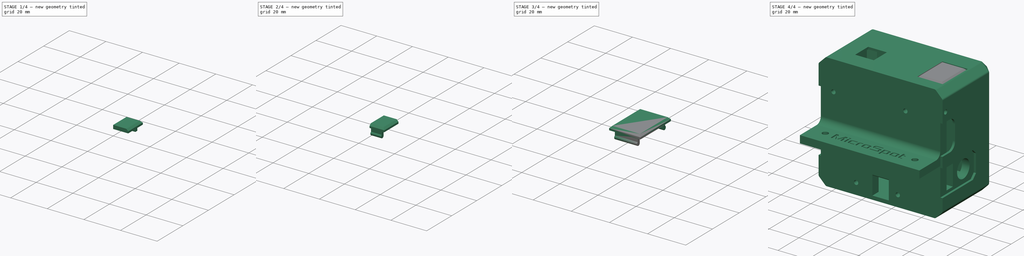
[diagram: build sequence overview — one tinted view per stage of 4, left to right]
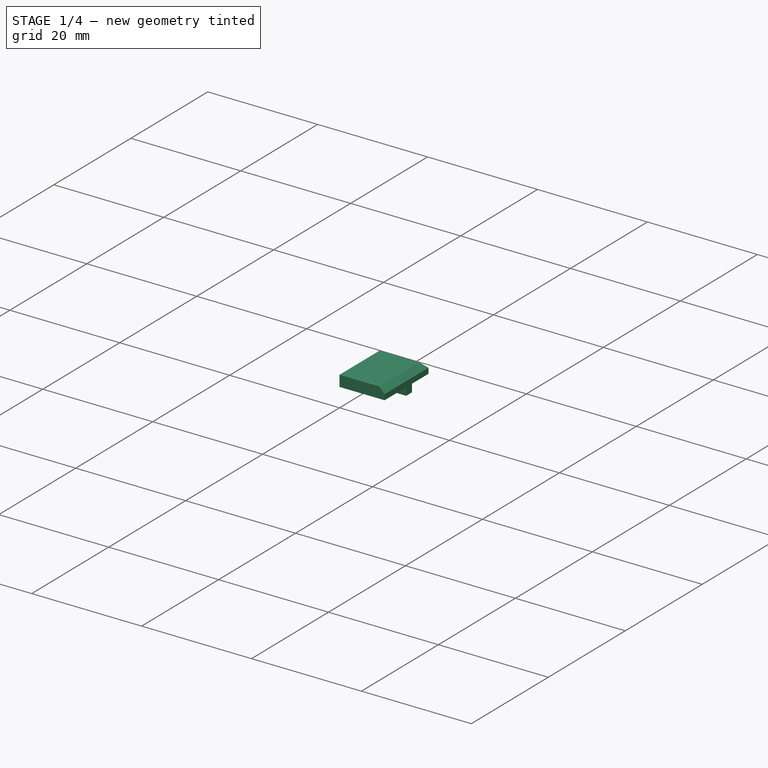
[diagram: stage 1 of 4 — iso view after this stage's code; geometry added in this stage tinted green]
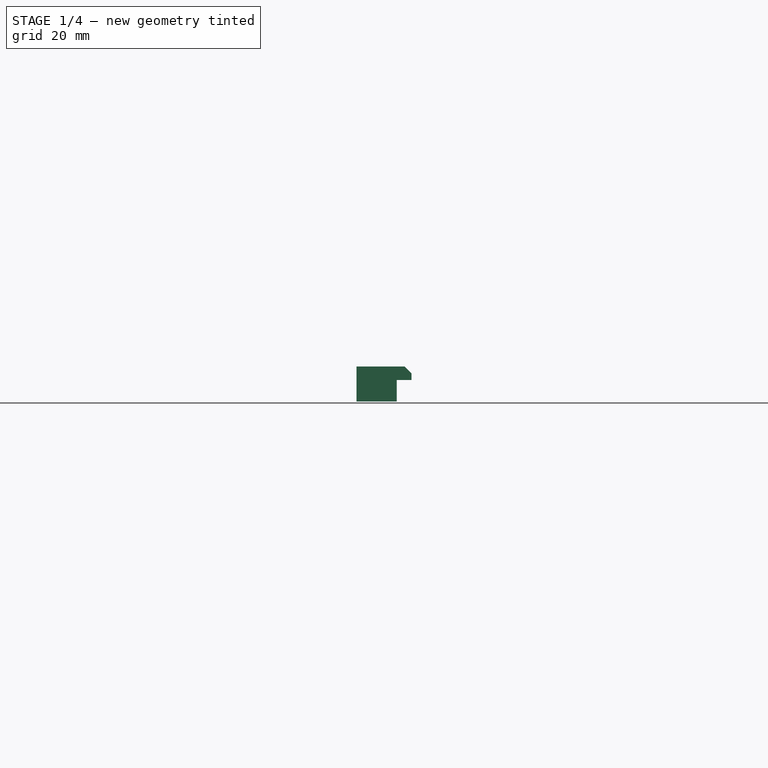
[diagram: stage 1 of 4 — front view after this stage's code; geometry added in this stage tinted green]
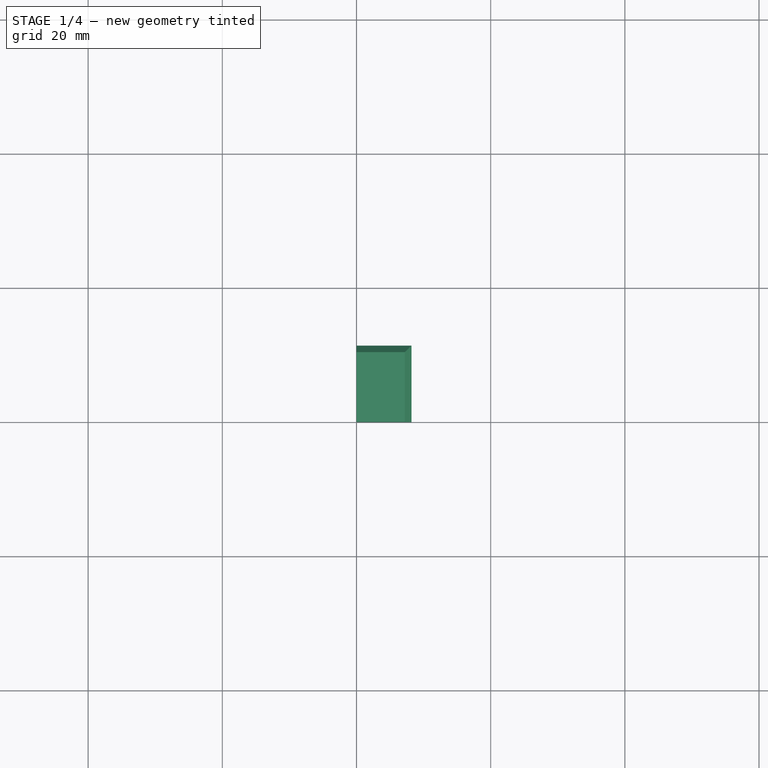
[diagram: stage 1 of 4 — top view after this stage's code; geometry added in this stage tinted green]
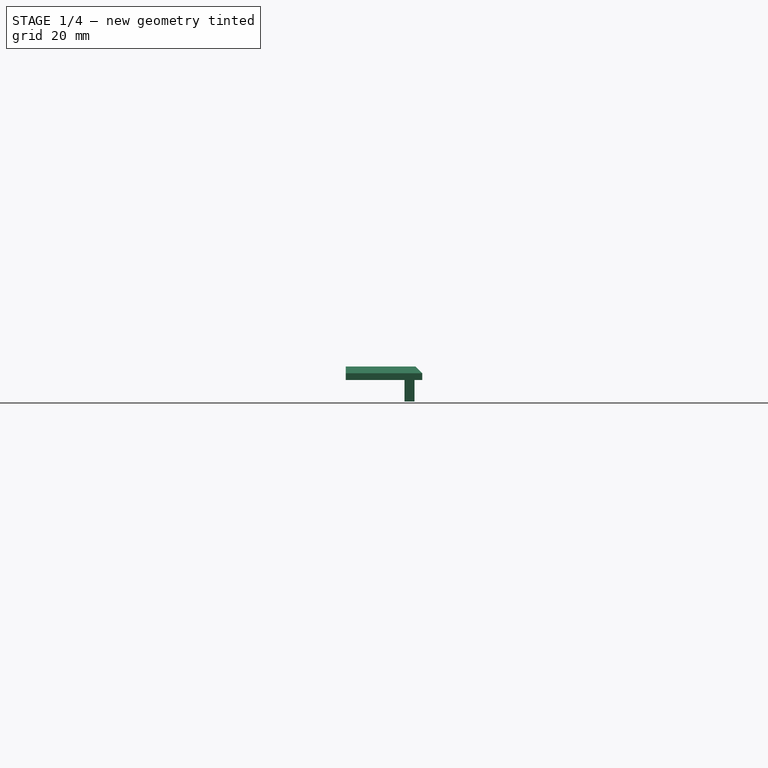
[diagram: stage 1 of 4 — right view after this stage's code; geometry added in this stage tinted green]
FCSTD DOCUMENT  (FreeCAD 0.16RUnknown)
Label: DummySwitch
License: All rights reserved
LicenseURL: http://en.wikipedia.org/wiki/All_rights_reserved
objects: Part::FeaturePython×5, App::DocumentObjectGroup×3, Sketcher::SketchObject×3, PartDesign::Pad×3, Part::Mirroring×2, Part::MultiFuse×2, Spreadsheet::Sheet×1, Part::Chamfer×1
note: 19 computed .brp shape members not serialized (recipe doc carries the construction recipe); baked Part::Feature solids carry a one-line shape summary decoded from their .brp

FEATURE [App::DocumentObjectGroup] Group002  label="Reference"
  Group = -> [ElecMain_01,ElecLid_01]
FEATURE [Sketcher::SketchObject] Sketch  label="Base"
  sketch-geometry (4):
    g0: LineSegment StartX=6 StartY=10.25 StartZ=0 EndX=0 EndY=10.25 EndZ=0
    g1: LineSegment StartX=0 StartY=10.25 StartZ=0 EndX=0 EndY=8.75 EndZ=0
    g2: LineSegment StartX=0 StartY=8.75 StartZ=0 EndX=6 EndY=8.75 EndZ=0
    g3: LineSegment StartX=6 StartY=8.75 StartZ=0 EndX=6 EndY=10.25 EndZ=0
  constraints (12):
    c: Coincident(g0,g1)
    c: Coincident(g2,g3)
    c: Coincident(g3,g0)
    c: Horizontal(g0)
    c: Horizontal(g2)
    c: Vertical(g1)
    c: Vertical(g3)
    c: DistanceX(g0) = 6
    c: DistanceY(g0) = 10.25
    c: Coincident(g2,g1)
    c: PointOnObject(g1,g-2)
    c: DistanceY(g1,g1) = 1.5
FEATURE [PartDesign::Pad] Pad  label="Base001"
  Length = 3.2
  Length2 = 100
  Reversed = true
  Sketch = -> Sketch
  Type = 0
FEATURE [Sketcher::SketchObject] Sketch001  label="Upper"
  Support = -> Pad [Face5]
  sketch-geometry (4):
    g0: LineSegment StartX=0 StartY=0 StartZ=0 EndX=8.2 EndY=0 EndZ=0
    g1: LineSegment StartX=8.2 StartY=0 StartZ=0 EndX=8.2 EndY=11.4 EndZ=0
    g2: LineSegment StartX=8.2 StartY=11.4 StartZ=0 EndX=0 EndY=11.4 EndZ=0
    g3: LineSegment StartX=0 StartY=11.4 StartZ=0 EndX=0 EndY=0 EndZ=0
  constraints (11):
    c: Coincident(g0,g1)
    c: Coincident(g1,g2)
    c: Coincident(g2,g3)
    c: Coincident(g3,g0)
    c: Horizontal(g0)
    c: Horizontal(g2)
    c: Vertical(g1)
    c: Vertical(g3)
    c: Coincident(g0,g-1)
    c: DistanceX(g2,g2) = 8.2
    c: DistanceY(g1,g1) = 11.4
FEATURE [PartDesign::Pad] Pad001  label="Upper001"
  Length = 2
  Length2 = 100
  Sketch = -> Sketch001
  Type = 0
FEATURE [Part::Chamfer] Chamfer
  Base = -> Pad001
  Edges = 2 edges r=1: [Edge22,Edge24]
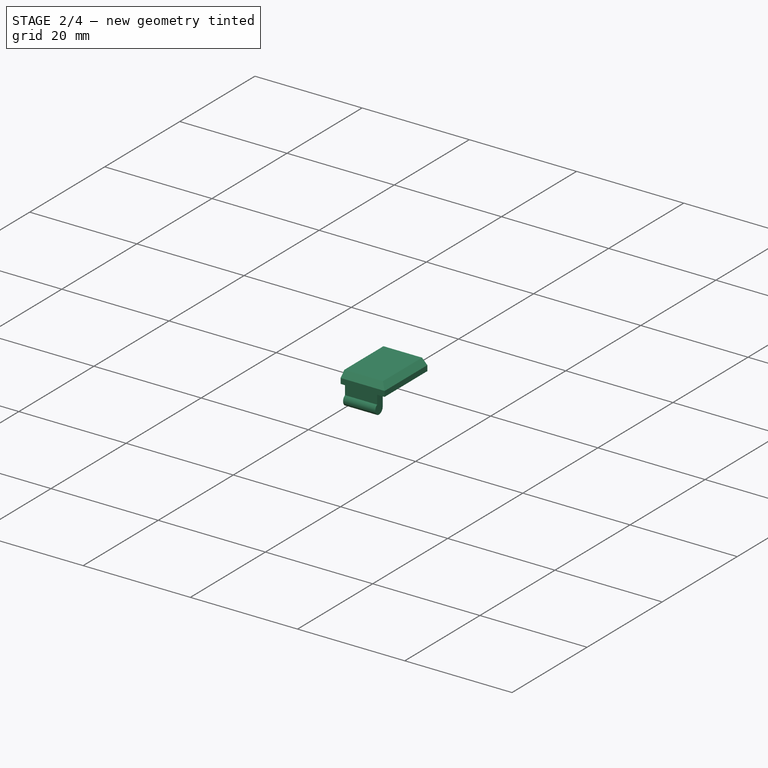
[diagram: stage 2 of 4 — iso view after this stage's code; geometry added in this stage tinted green]
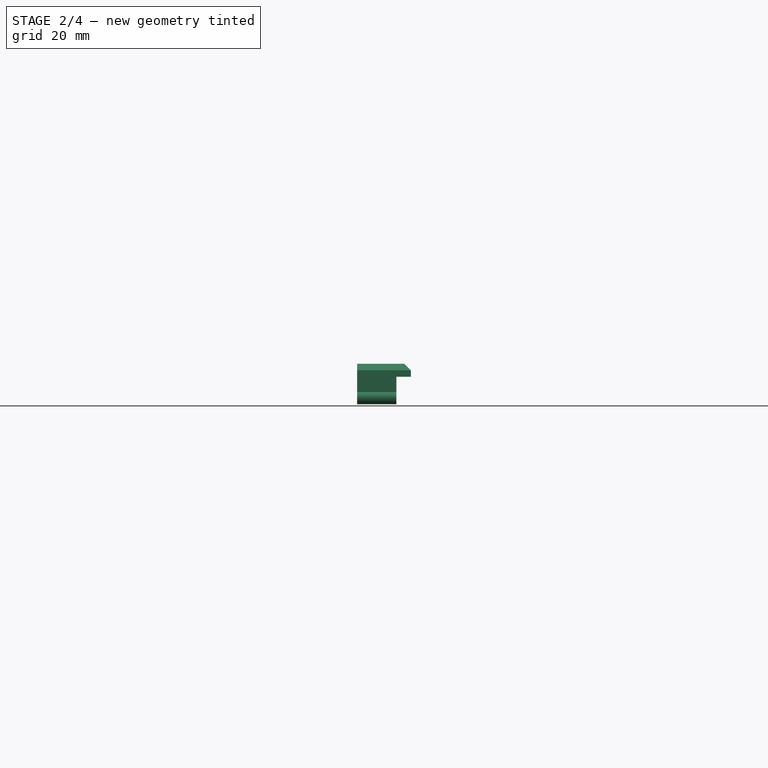
[diagram: stage 2 of 4 — front view after this stage's code; geometry added in this stage tinted green]
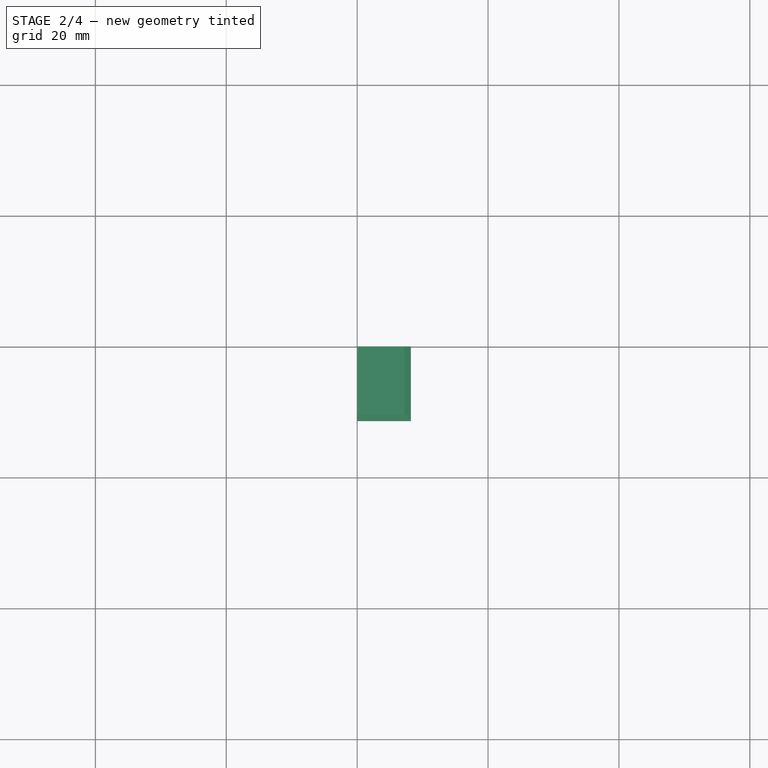
[diagram: stage 2 of 4 — top view after this stage's code; geometry added in this stage tinted green]
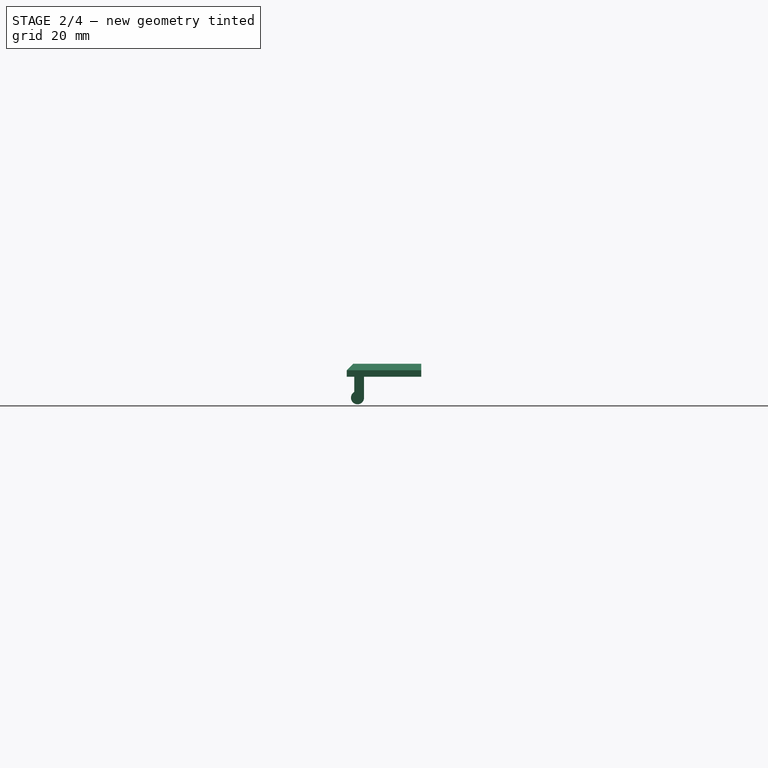
[diagram: stage 2 of 4 — right view after this stage's code; geometry added in this stage tinted green]
FEATURE [Sketcher::SketchObject] Sketch002  label="Fix"
  Placement = pos=(0,0,0) rot=(0.57735,-0.57735,-0.57735;2.0944rad)
  Support = -> Chamfer [Face6]
  sketch-geometry (2):
    g0: Circle CenterX=-9.75 CenterY=-3.2 CenterZ=0 NormalX=0 NormalY=0 NormalZ=1 Radius=1
    g1: GeomPoint [constr] X=-8.75 Y=-3.2 Z=0
  constraints (5):
    c: DistanceY(g0) = -3.2
    c: PointOnObject(g1,g0)
    c: DistanceX(g1) = -8.75
    c: DistanceY(g1) = -3.2
    c: DistanceX(g0) = -9.75
FEATURE [PartDesign::Pad] Pad002  label="Fix001"
  Length = 10
  Length2 = 100
  Sketch = -> Sketch002
  Type = 3
  UpToFace = -> Chamfer [Face11]
FEATURE [Part::FeaturePython] refine  label="refine_Fix001"  # WARN: FeaturePython — macro-defined, semantics opaque (R4)
  Base = -> Pad002
FEATURE [Part::Mirroring] Part__Mirroring  label="refine_Fix001 (Mirror #1)"
  Base = (0,0,0)
  Normal = (0,1,0)
  Source = -> refine
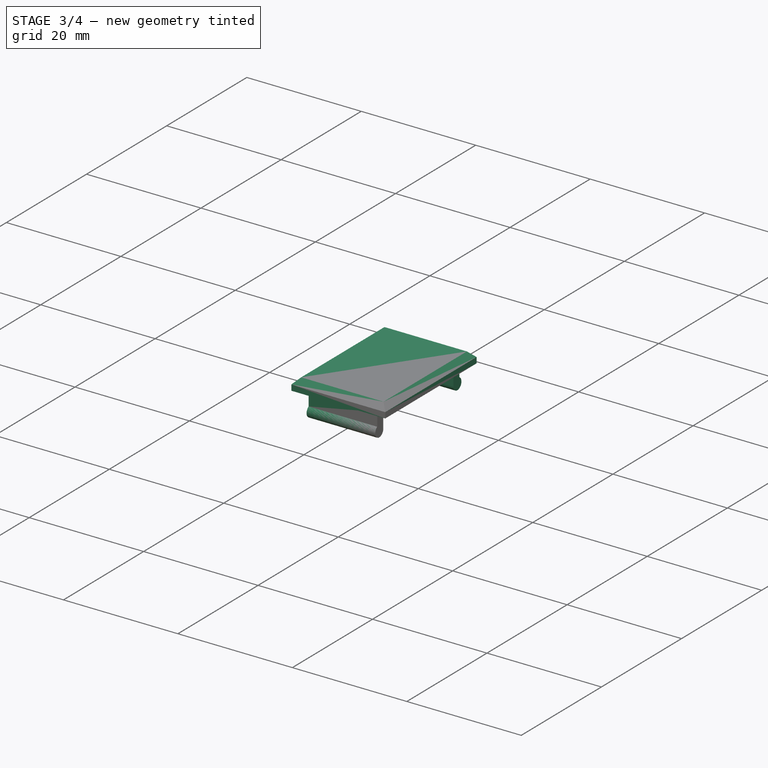
[diagram: stage 3 of 4 — iso view after this stage's code; geometry added in this stage tinted green]
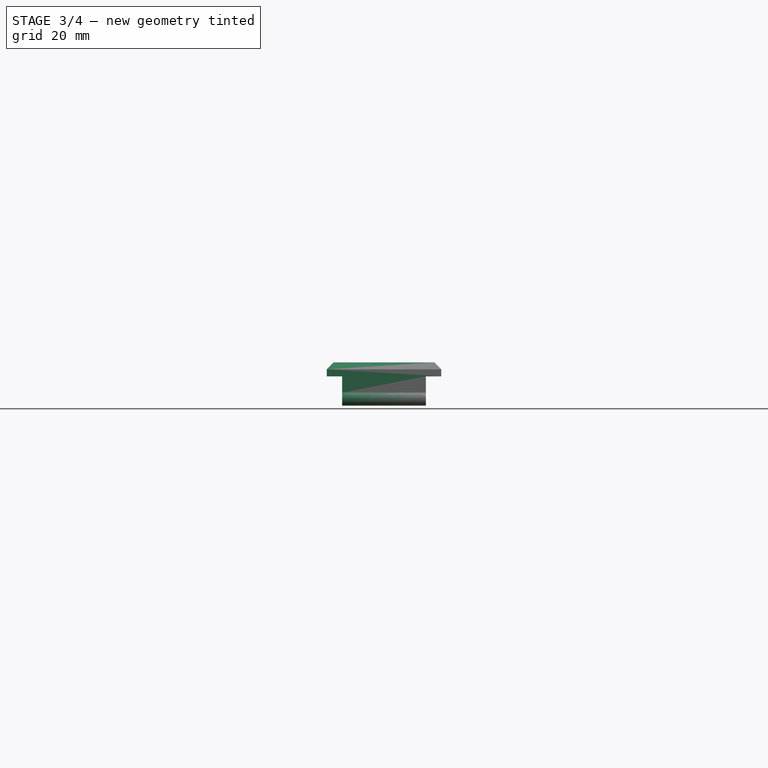
[diagram: stage 3 of 4 — front view after this stage's code; geometry added in this stage tinted green]
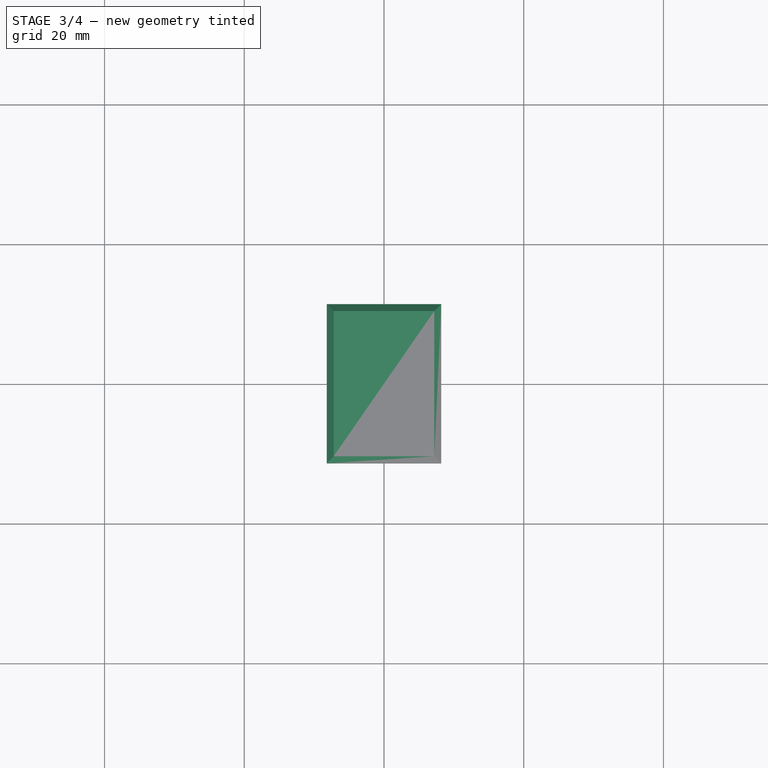
[diagram: stage 3 of 4 — top view after this stage's code; geometry added in this stage tinted green]
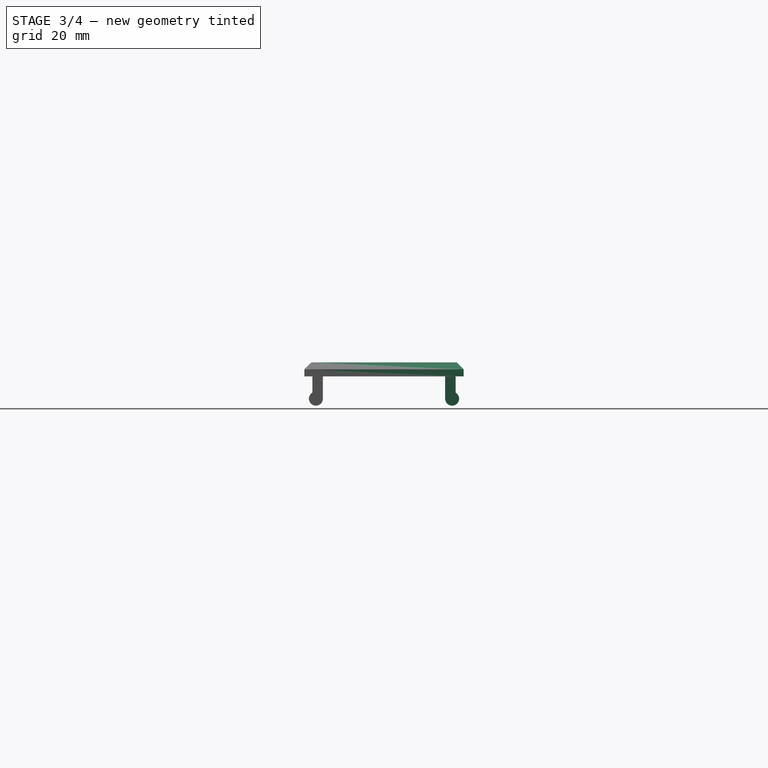
[diagram: stage 3 of 4 — right view after this stage's code; geometry added in this stage tinted green]
FEATURE [Part::MultiFuse] Fusion
  Shapes = -> [refine,Part__Mirroring]
FEATURE [Part::Mirroring] Part__Mirroring001  label="Fusion (Mirror #2)"
  Base = (0,0,0)
  Normal = (1,0,0)
  Source = -> Fusion
FEATURE [Part::MultiFuse] Fusion001  label="Mirroring"
  Shapes = -> [Part__Mirroring001,Fusion]
FEATURE [Part::FeaturePython] refine001  label="refine_Mirroring"  # WARN: FeaturePython — macro-defined, semantics opaque (R4)
  Base = -> Fusion001
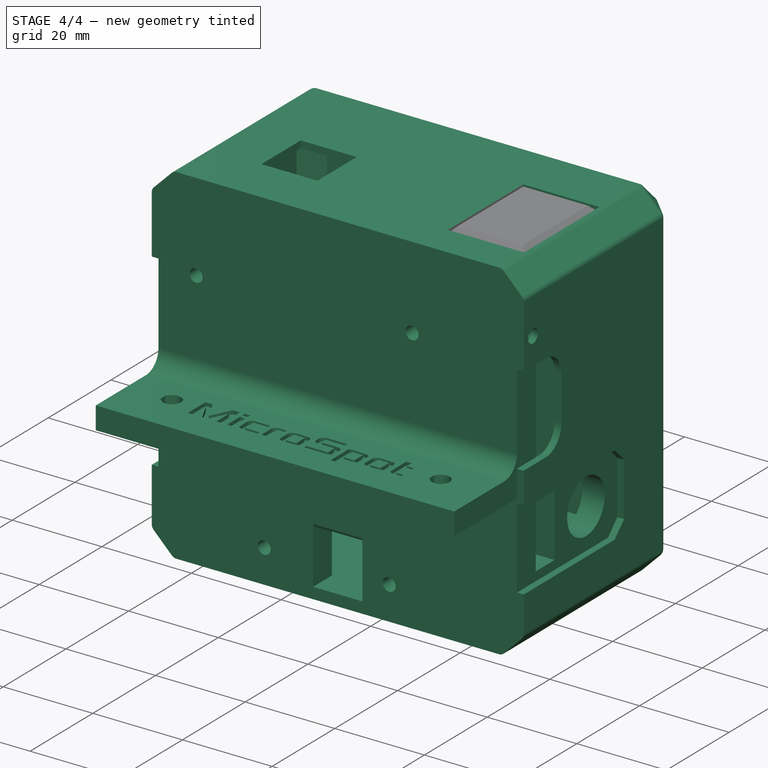
[diagram: stage 4 of 4 — iso view after this stage's code; geometry added in this stage tinted green]
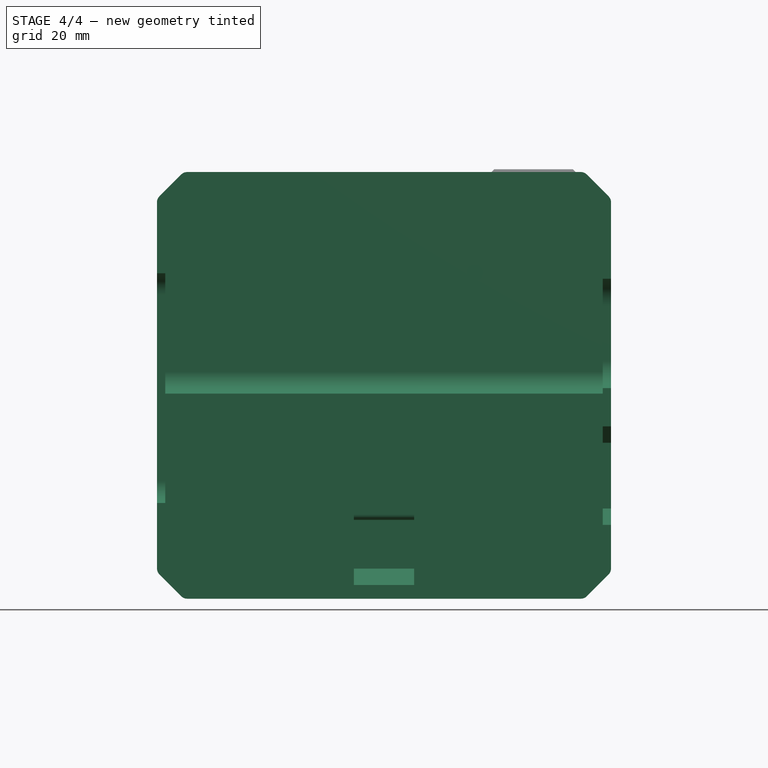
[diagram: stage 4 of 4 — front view after this stage's code; geometry added in this stage tinted green]
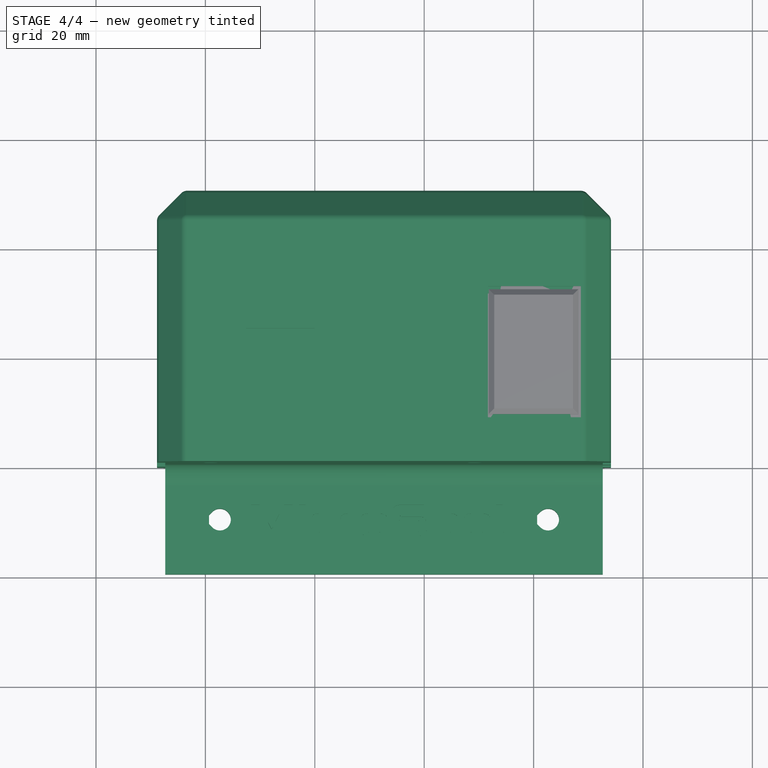
[diagram: stage 4 of 4 — top view after this stage's code; geometry added in this stage tinted green]
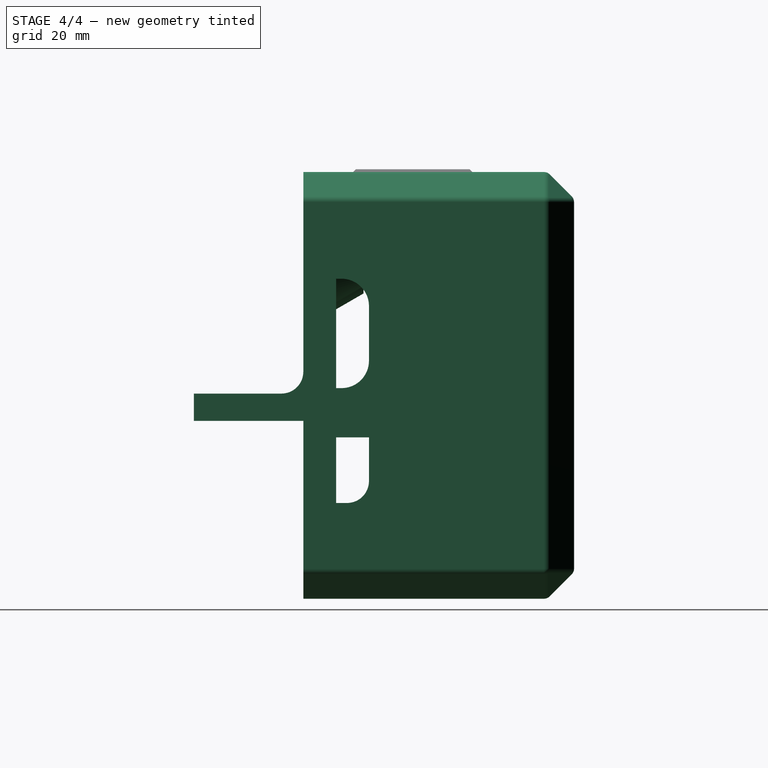
[diagram: stage 4 of 4 — right view after this stage's code; geometry added in this stage tinted green]
FEATURE [Spreadsheet::Sheet] Spreadsheet  label="pars"
  cells = A1=Bolts and Nuts; B1=Value; D1=Components; E1=Value; A2=Thread Tight Tolerance (Radius, ratio); B2(ThrTighRatio)=0.96; D2=Tight Cilinder Tolerances (Radius, mm); E2(CilTight)=0.1; A3=Thread Tight Tolerance (Radius, mm); B3(ThrTightmm)=0.1; D3=Loose Cilinder Tolerances (Radius, mm); E3(CilLoose)=0.1; A5=Nut Slot Width Clearance (mm); B5(NutWidthClearmm)=0.1; A6=Nut Slot Thickess Clearance (mm); B6(NutThickClearmm)=0.1; A13=Particular parameters; B13=Value
FEATURE [App::DocumentObjectGroup] Group001  label="Component_src"
FEATURE [Part::FeaturePython] ElecMain_01  label="ElecMain"  # a2plus imported part (geometry in sourceFile) (typed FeaturePython)
  Placement = pos=(-27.35,-20,-44) rot=(0,0,1;0rad)
  fixedPosition = true
  sourceFile = ./ElecMain.fcstd
  timeLastImport = 1.49701e+09
  updateColors = true
FEATURE [Part::FeaturePython] ElecLid_01  label="ElecLid"  # a2plus imported part (geometry in sourceFile) (typed FeaturePython)
  Placement = pos=(12.65,-20,-75) rot=(0,0,1;3.14159rad)
  fixedPosition = false
  sourceFile = ./ElecLid.fcstd
  timeLastImport = 1.49701e+09
  updateColors = true
FEATURE [App::DocumentObjectGroup] Group  label="src"
  Group = -> [Pad,Pad001,Chamfer,Pad002,Fusion001,refine001]
FEATURE [Part::FeaturePython] Clone  label="DummySwitch"  # Draft clone (typed FeaturePython)
  Objects = -> [refine001]
  Scale = (1,1,1)
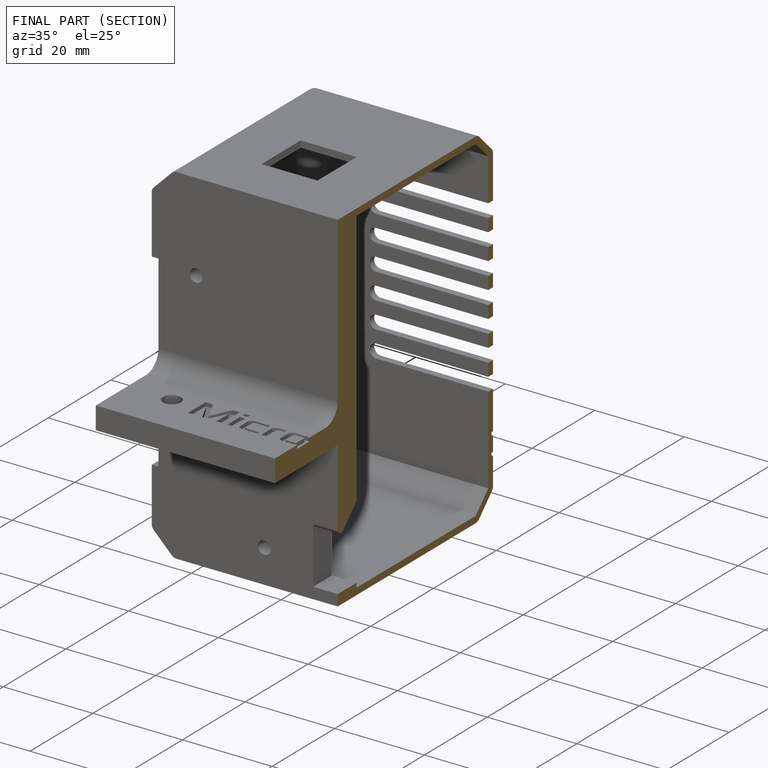
[diagram: finished part — half-section view (interior)]
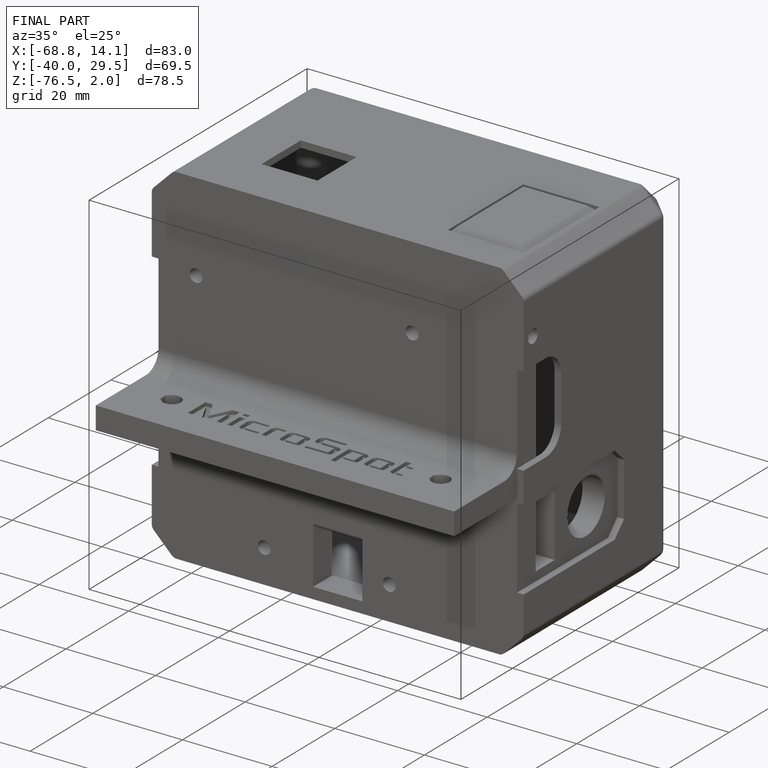
[diagram: finished part — iso view with bounding-box wireframe]
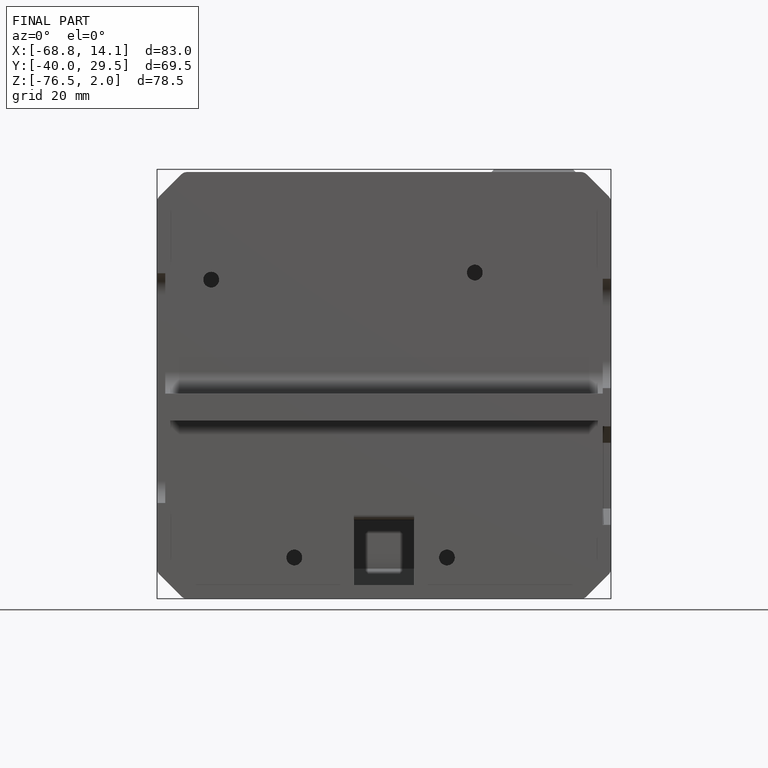
[diagram: finished part — front view with bounding-box wireframe]
